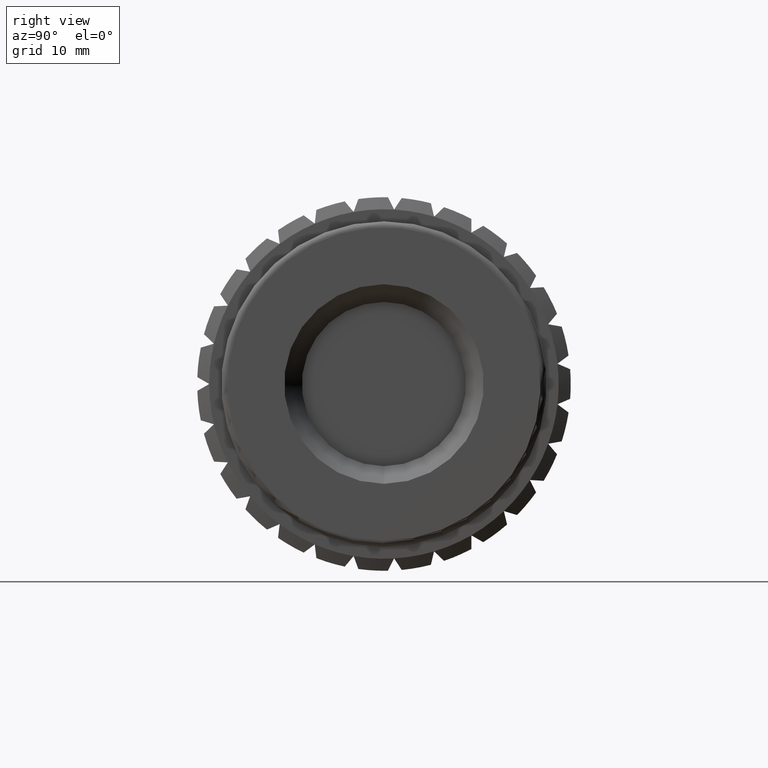
[diagram: clean part render]
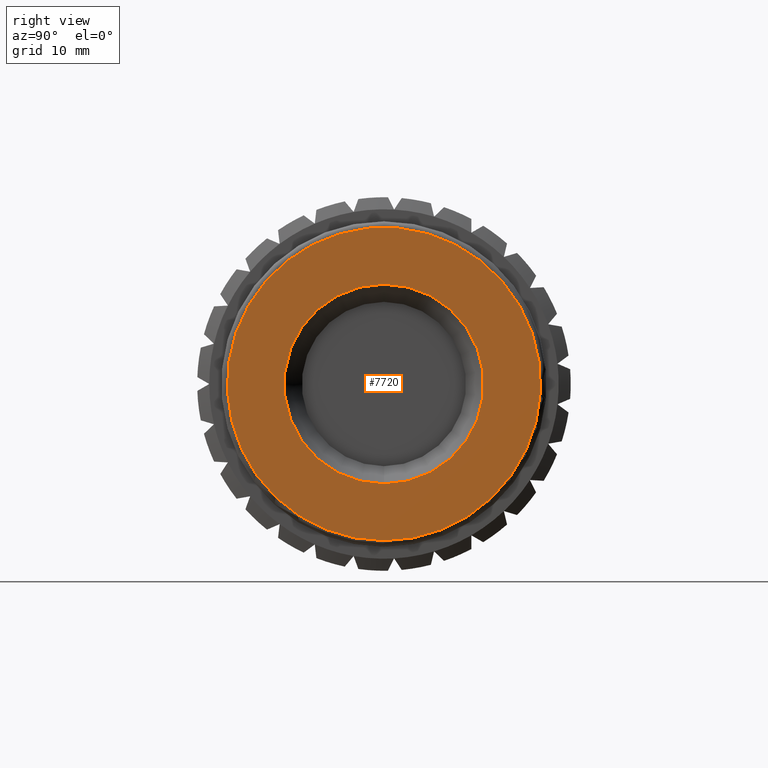
[diagram: same view with one face highlighted and labeled with its STEP entity id]
A machine part, right view. The second image highlights one B-rep face of the part: STEP entity #7720.
In plain terms, the highlighted planar face has unit normal (-1, 0, 0).
Its self-contained STEP definition (entity closure, byte-faithful):
#1451=FACE_BOUND('',#2582,.T.);
#2012=FACE_OUTER_BOUND('',#2581,.T.);
#2581=EDGE_LOOP('',(#6917));
#2582=EDGE_LOOP('',(#6918));
#2968=CIRCLE('',#8644,13.);
#2969=CIRCLE('',#8646,8.28484848484848);
#3555=VERTEX_POINT('',#14398);
#3556=VERTEX_POINT('',#14401);
#4682=EDGE_CURVE('',#3555,#3555,#2968,.T.);
#4683=EDGE_CURVE('',#3556,#3556,#2969,.T.);
#6917=ORIENTED_EDGE('',*,*,#4682,.T.);
#6918=ORIENTED_EDGE('',*,*,#4683,.F.);
#7168=PLANE('',#8645);
#7720=ADVANCED_FACE('',(#2012,#1451),#7168,.F.);
#8644=AXIS2_PLACEMENT_3D('',#14399,#10811,#10812);
#8645=AXIS2_PLACEMENT_3D('',#14400,#10813,#10814);
#8646=AXIS2_PLACEMENT_3D('',#14402,#10815,#10816);
#10811=DIRECTION('center_axis',(1.,0.,0.));
#10812=DIRECTION('ref_axis',(0.,0.,-1.));
#10813=DIRECTION('center_axis',(-1.,0.,0.));
#10814=DIRECTION('ref_axis',(0.,0.,1.));
#10815=DIRECTION('center_axis',(1.,0.,0.));
#10816=DIRECTION('ref_axis',(0.,0.,-1.));
#14398=CARTESIAN_POINT('',(22.,0.,-13.));
#14399=CARTESIAN_POINT('Origin',(22.,0.,0.));
#14400=CARTESIAN_POINT('Origin',(22.,13.,0.));
#14401=CARTESIAN_POINT('',(22.,0.,-8.28484848484848));
#14402=CARTESIAN_POINT('Origin',(22.,0.,0.));